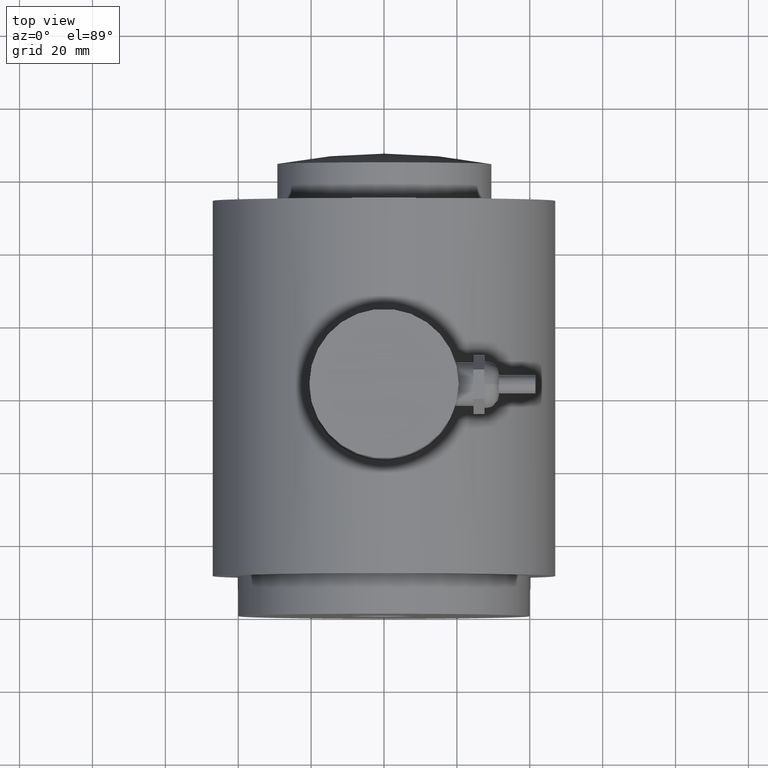
[diagram: clean part render]
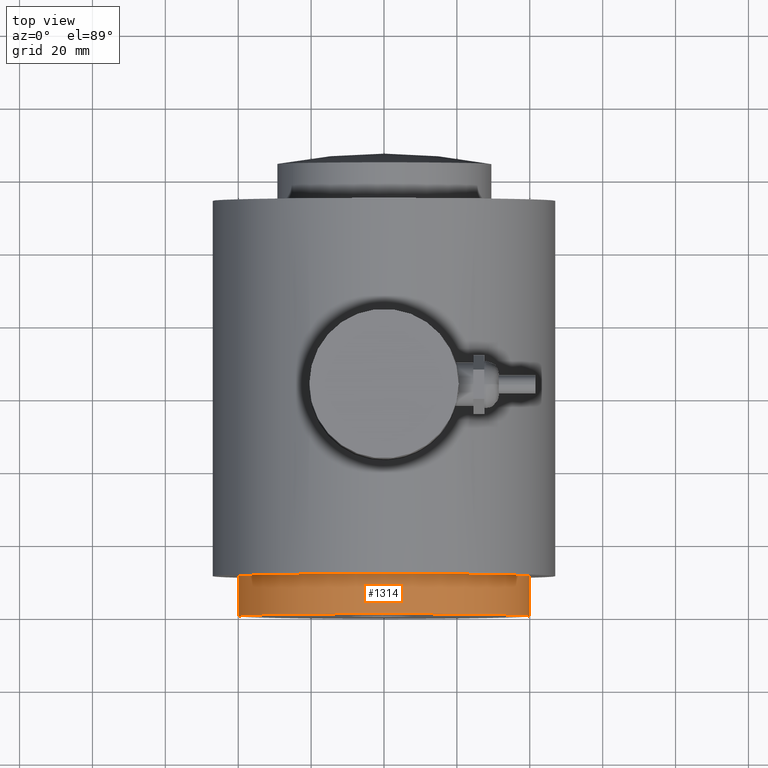
[diagram: same view with one face highlighted and labeled with its STEP entity id]
A machine part, top view. The second image highlights one B-rep face of the part: STEP entity #1314.
In plain terms, the highlighted cylindrical surface (bore or boss wall) has radius 40.005 mm, axis along (0, 1, 0).
Its self-contained STEP definition (entity closure, byte-faithful):
#217=FACE_OUTER_BOUND('',#306,.T.);
#306=EDGE_LOOP('',(#1180,#1181,#1182,#1183));
#392=LINE('',#5884,#476);
#476=VECTOR('',#1728,1.575);
#502=CIRCLE('',#1429,1.575);
#504=CIRCLE('',#1434,1.575);
#625=VERTEX_POINT('',#5875);
#627=VERTEX_POINT('',#5883);
#810=EDGE_CURVE('',#625,#625,#502,.T.);
#813=EDGE_CURVE('',#625,#627,#392,.T.);
#814=EDGE_CURVE('',#627,#627,#504,.T.);
#1180=ORIENTED_EDGE('',*,*,#810,.F.);
#1181=ORIENTED_EDGE('',*,*,#813,.T.);
#1182=ORIENTED_EDGE('',*,*,#814,.T.);
#1183=ORIENTED_EDGE('',*,*,#813,.F.);
#1236=CYLINDRICAL_SURFACE('',#1433,1.575);
#1314=ADVANCED_FACE('',(#217),#1236,.T.);
#1429=AXIS2_PLACEMENT_3D('',#5876,#1717,#1718);
#1433=AXIS2_PLACEMENT_3D('',#5882,#1726,#1727);
#1434=AXIS2_PLACEMENT_3D('',#5885,#1729,#1730);
#1717=DIRECTION('center_axis',(0.,1.,0.));
#1718=DIRECTION('ref_axis',(1.,0.,0.));
#1726=DIRECTION('center_axis',(0.,1.,0.));
#1727=DIRECTION('ref_axis',(1.,0.,0.));
#1728=DIRECTION('',(0.,-1.,0.));
#1729=DIRECTION('center_axis',(0.,1.,0.));
#1730=DIRECTION('ref_axis',(1.,0.,0.));
#5875=CARTESIAN_POINT('',(-1.575,0.433070866141732,1.92881870865708E-16));
#5876=CARTESIAN_POINT('Origin',(0.,0.433070866141732,0.));
#5882=CARTESIAN_POINT('Origin',(0.,0.,0.));
#5883=CARTESIAN_POINT('',(-1.575,0.,1.92881870865708E-16));
#5884=CARTESIAN_POINT('',(-1.575,0.,1.92881870865708E-16));
#5885=CARTESIAN_POINT('Origin',(0.,0.,0.));